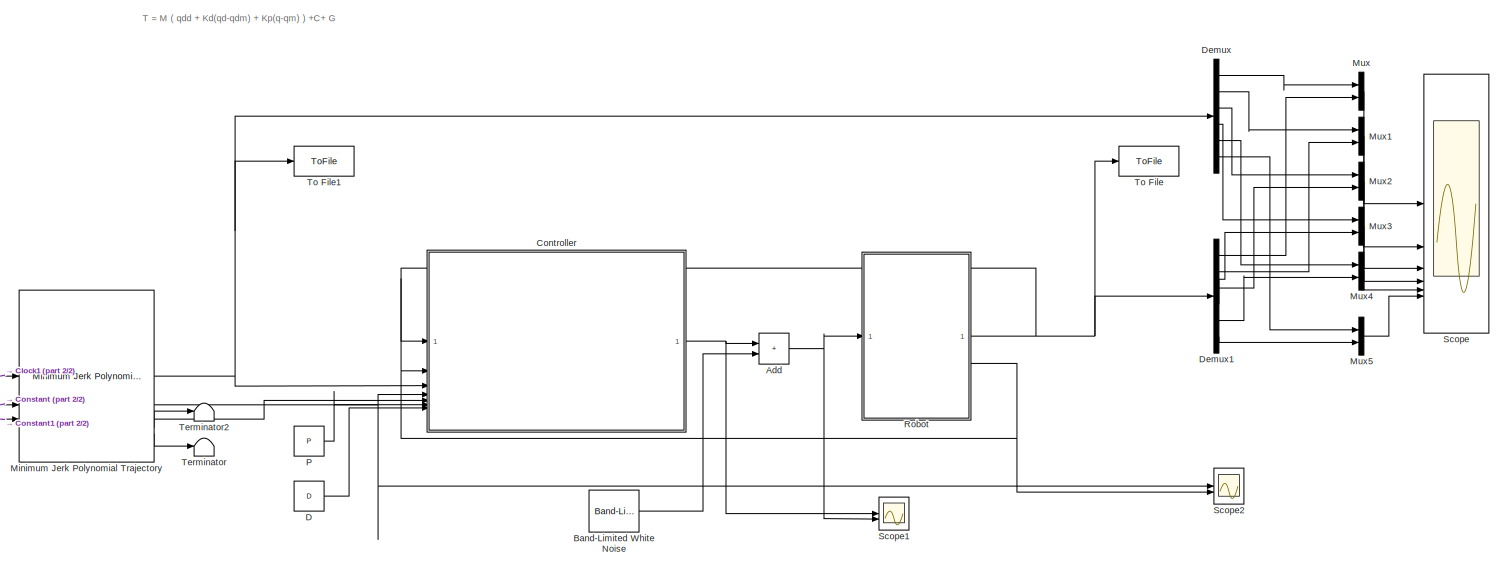
[diagram: root canvas - part 1/2, most of the canvas]
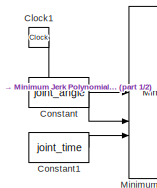
[diagram: root canvas - part 2/2, bottom left region]
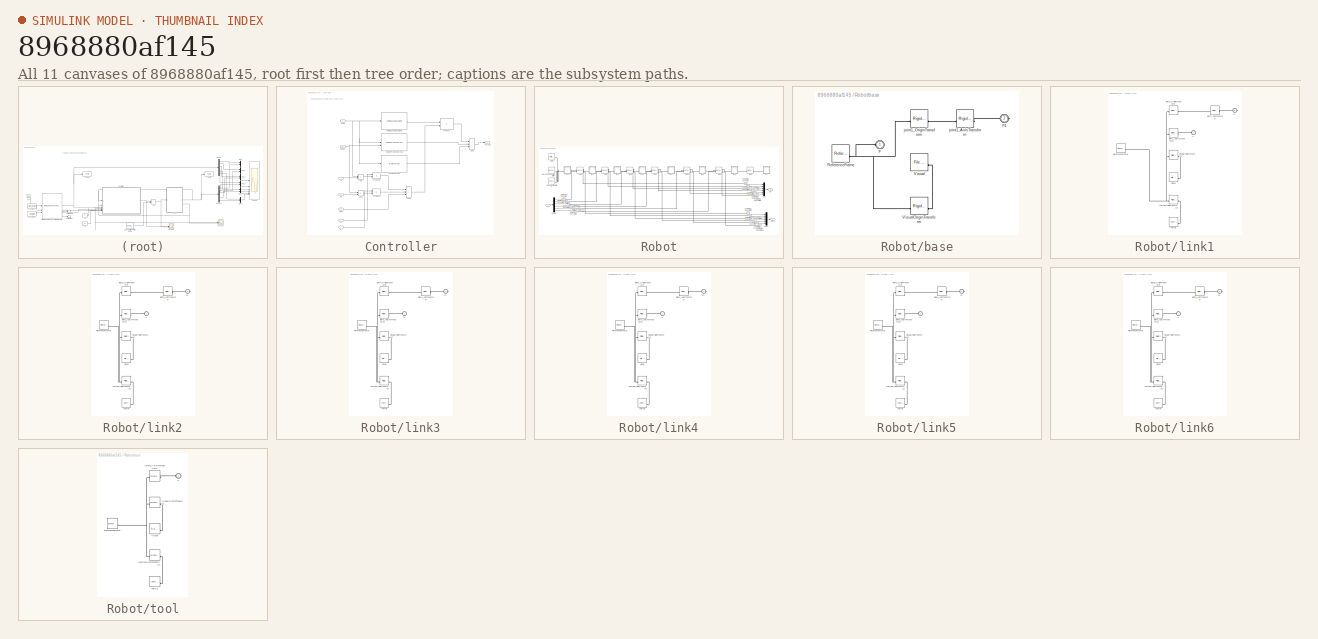
[diagram: thumbnail index - all 11 canvases of the model, root first then tree order]
MODEL slx_8968880af145
KIND model
CONFIG AbsTol = auto
CONFIG EnableMultiTasking = off
CONFIG FixedStep = auto
CONFIG MaxStep = auto
CONFIG MinStep = auto
CONFIG RelTol = 1e-3
CONFIG SampleTimeConstraint = Unconstrained
CONFIG SolverName = VariableStepAuto
CONFIG StartTime = 0.0
CONFIG StopTime = 10
BLOCK [Sum] Add
  IconShape = rectangular
BLOCK [Reference] Band-Limited White Noise  REF=simulink/Sources/Band-Limited
White Noise
  SourceBlock = simulink/Sources/Band-Limited\nWhite Noise
  SourceType = Band-Limited White Noise.
BLOCK [Clock] Clock1
  Decimation = 9
BLOCK [Constant] Constant
  Value = joint_angle
BLOCK [Constant] Constant1
  Value = joint_time
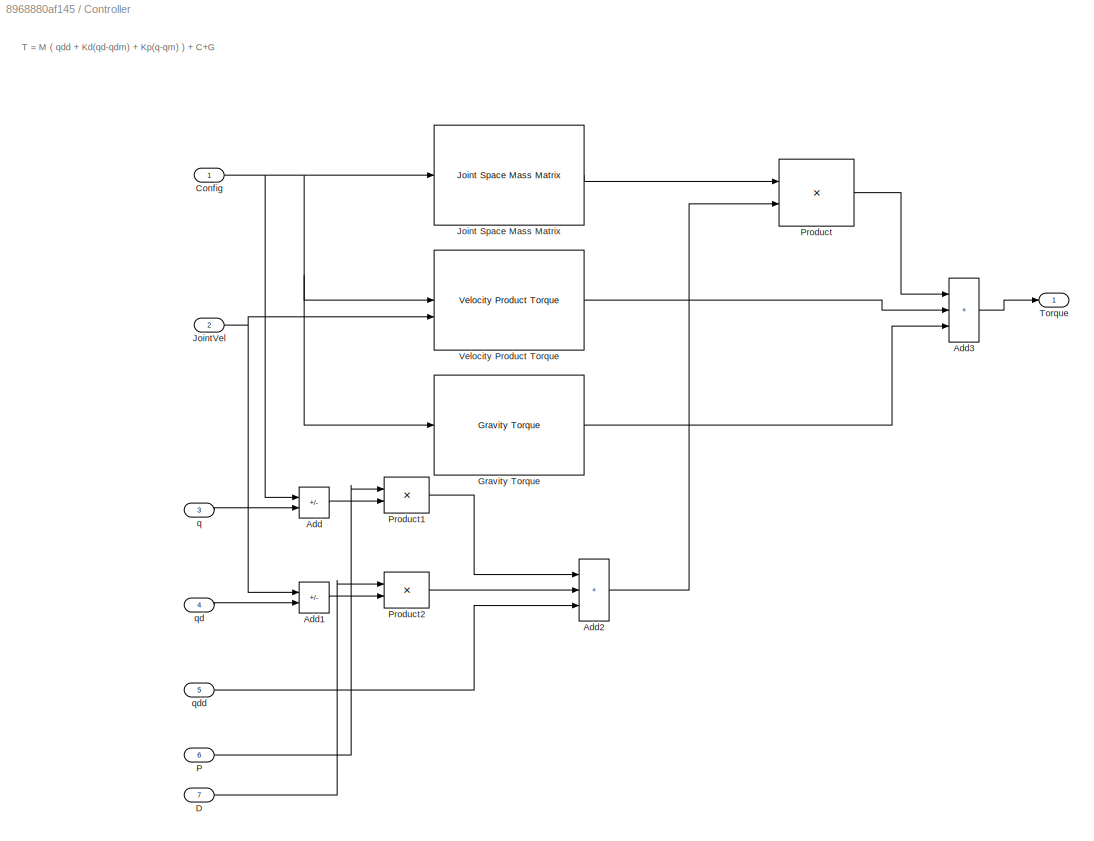
BLOCK [SubSystem] Controller
BLOCK [Sum] Controller/Add
  IconShape = rectangular
  Inputs = -+
BLOCK [Sum] Controller/Add1
  IconShape = rectangular
  Inputs = -+
BLOCK [Sum] Controller/Add2
  IconShape = rectangular
  Inputs = +++
BLOCK [Sum] Controller/Add3
  IconShape = rectangular
  Inputs = +++
BLOCK [Inport] Controller/Config
BLOCK [Inport] Controller/D
  Port = 7
BLOCK [Reference] Controller/Gravity Torque  REF=robotmaniplib/Gravity Torque
  SourceBlock = robotmaniplib/Gravity Torque
  SourceType = Gravity Torque
BLOCK [Reference] Controller/Joint Space Mass Matrix  REF=robotmaniplib/Joint Space Mass Matrix
  SourceBlock = robotmaniplib/Joint Space Mass Matrix
  SourceType = Joint Space Mass Matrix
BLOCK [Inport] Controller/JointVel
  Port = 2
BLOCK [Inport] Controller/P
  Port = 6
BLOCK [Product] Controller/Product
  Multiplication = Matrix(*)
BLOCK [Product] Controller/Product1
BLOCK [Product] Controller/Product2
BLOCK [Outport] Controller/Torque
BLOCK [Reference] Controller/Velocity Product Torque  REF=robotmaniplib/Velocity Product Torque
  SourceBlock = robotmaniplib/Velocity Product Torque
  SourceType = Velocity Product Torque
BLOCK [Inport] Controller/q
  Port = 3
BLOCK [Inport] Controller/qd
  Port = 4
BLOCK [Inport] Controller/qdd
  Port = 5
BLOCK [Constant] D
  Value = D
BLOCK [Demux] Demux
  Outputs = 6
BLOCK [Demux] Demux1
  Outputs = 6
BLOCK [Reference] Minimum Jerk Polynomial Trajectory  REF=shareduavrstlib/Minimum Jerk Polynomial Trajectory
  LibrarySourceBlock = robotutilslib/Minimum Jerk Polynomial Trajectory
  SourceBlock = shareduavrstlib/Minimum Jerk Polynomial Trajectory
  SourceType = shared_uav_rst.sluav.internal.system.MinJerkPolyTraj
BLOCK [Mux] Mux
  DisplayOption = bar
  Inputs = 2
BLOCK [Mux] Mux1
  DisplayOption = bar
  Inputs = 2
BLOCK [Mux] Mux2
  DisplayOption = bar
  Inputs = 2
BLOCK [Mux] Mux3
  DisplayOption = bar
  Inputs = 2
BLOCK [Mux] Mux4
  DisplayOption = bar
  Inputs = 2
BLOCK [Mux] Mux5
  DisplayOption = bar
  Inputs = 2
BLOCK [Constant] P
  Value = P
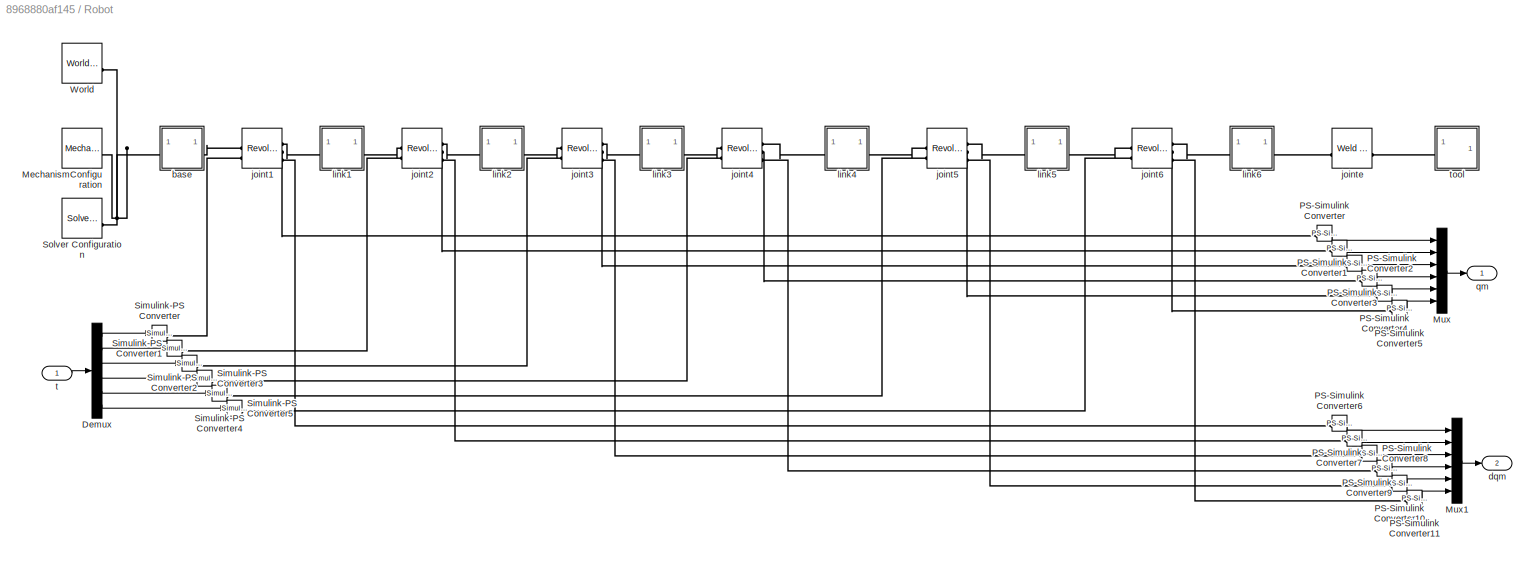
BLOCK [SubSystem] Robot
BLOCK [Demux] Robot/Demux
  Outputs = 6
BLOCK [Reference] Robot/MechanismConfiguration  REF=sm_lib/Utilities/Mechanism
Configuration
  SourceBlock = sm_lib/Utilities/Mechanism\nConfiguration
  SourceType = Mechanism\nConfiguration
BLOCK [Mux] Robot/Mux
  DisplayOption = bar
  Inputs = 6
BLOCK [Mux] Robot/Mux1
  DisplayOption = bar
  Inputs = 6
BLOCK [Reference] Robot/PS-Simulink Converter  REF=nesl_utility/PS-Simulink
Converter
  SourceBlock = nesl_utility/PS-Simulink\nConverter
  SourceType = PS-Simulink\nConverter
BLOCK [Reference] Robot/PS-Simulink Converter1  REF=nesl_utility/PS-Simulink
Converter
  SourceBlock = nesl_utility/PS-Simulink\nConverter
  SourceType = PS-Simulink\nConverter
BLOCK [Reference] Robot/PS-Simulink Converter10  REF=nesl_utility/PS-Simulink
Converter
  SourceBlock = nesl_utility/PS-Simulink\nConverter
  SourceType = PS-Simulink\nConverter
BLOCK [Reference] Robot/PS-Simulink Converter11  REF=nesl_utility/PS-Simulink
Converter
  SourceBlock = nesl_utility/PS-Simulink\nConverter
  SourceType = PS-Simulink\nConverter
BLOCK [Reference] Robot/PS-Simulink Converter2  REF=nesl_utility/PS-Simulink
Converter
  SourceBlock = nesl_utility/PS-Simulink\nConverter
  SourceType = PS-Simulink\nConverter
BLOCK [Reference] Robot/PS-Simulink Converter3  REF=nesl_utility/PS-Simulink
Converter
  SourceBlock = nesl_utility/PS-Simulink\nConverter
  SourceType = PS-Simulink\nConverter
BLOCK [Reference] Robot/PS-Simulink Converter4  REF=nesl_utility/PS-Simulink
Converter
  SourceBlock = nesl_utility/PS-Simulink\nConverter
  SourceType = PS-Simulink\nConverter
BLOCK [Reference] Robot/PS-Simulink Converter5  REF=nesl_utility/PS-Simulink
Converter
  SourceBlock = nesl_utility/PS-Simulink\nConverter
  SourceType = PS-Simulink\nConverter
BLOCK [Reference] Robot/PS-Simulink Converter6  REF=nesl_utility/PS-Simulink
Converter
  SourceBlock = nesl_utility/PS-Simulink\nConverter
  SourceType = PS-Simulink\nConverter
BLOCK [Reference] Robot/PS-Simulink Converter7  REF=nesl_utility/PS-Simulink
Converter
  SourceBlock = nesl_utility/PS-Simulink\nConverter
  SourceType = PS-Simulink\nConverter
BLOCK [Reference] Robot/PS-Simulink Converter8  REF=nesl_utility/PS-Simulink
Converter
  SourceBlock = nesl_utility/PS-Simulink\nConverter
  SourceType = PS-Simulink\nConverter
BLOCK [Reference] Robot/PS-Simulink Converter9  REF=nesl_utility/PS-Simulink
Converter
  SourceBlock = nesl_utility/PS-Simulink\nConverter
  SourceType = PS-Simulink\nConverter
BLOCK [Reference] Robot/Simulink-PS Converter  REF=nesl_utility/Simulink-PS
Converter
  SourceBlock = nesl_utility/Simulink-PS\nConverter
  SourceType = Simulink-PS\nConverter
BLOCK [Reference] Robot/Simulink-PS Converter1  REF=nesl_utility/Simulink-PS
Converter
  SourceBlock = nesl_utility/Simulink-PS\nConverter
  SourceType = Simulink-PS\nConverter
BLOCK [Reference] Robot/Simulink-PS Converter2  REF=nesl_utility/Simulink-PS
Converter
  SourceBlock = nesl_utility/Simulink-PS\nConverter
  SourceType = Simulink-PS\nConverter
BLOCK [Reference] Robot/Simulink-PS Converter3  REF=nesl_utility/Simulink-PS
Converter
  SourceBlock = nesl_utility/Simulink-PS\nConverter
  SourceType = Simulink-PS\nConverter
BLOCK [Reference] Robot/Simulink-PS Converter4  REF=nesl_utility/Simulink-PS
Converter
  SourceBlock = nesl_utility/Simulink-PS\nConverter
  SourceType = Simulink-PS\nConverter
BLOCK [Reference] Robot/Simulink-PS Converter5  REF=nesl_utility/Simulink-PS
Converter
  SourceBlock = nesl_utility/Simulink-PS\nConverter
  SourceType = Simulink-PS\nConverter
BLOCK [Reference] Robot/Solver Configuration  REF=nesl_utility/Solver
Configuration
  SourceBlock = nesl_utility/Solver\nConfiguration
  SourceType = Solver\nConfiguration
BLOCK [Reference] Robot/World  REF=sm_lib/Frames and
Transforms/World Frame
  SourceBlock = sm_lib/Frames and\nTransforms/World Frame
  SourceType = World Frame
BLOCK [SubSystem] Robot/base
BLOCK [PMIOPort] Robot/base/F
  Side = Left
BLOCK [PMIOPort] Robot/base/F1
  Port = 2
  Side = Right
BLOCK [Reference] Robot/base/ReferenceFrame  REF=sm_lib/Frames and
Transforms/Reference
Frame
  SourceBlock = sm_lib/Frames and\nTransforms/Reference\nFrame
  SourceType = Reference\nFrame
BLOCK [Reference] Robot/base/Visual  REF=sm_lib/Body Elements/File Solid
  SourceBlock = sm_lib/Body Elements/File Solid
  SourceType = File Solid
BLOCK [Reference] Robot/base/VisualOriginTransform  REF=sm_lib/Frames and
Transforms/Rigid
Transform
  SourceBlock = sm_lib/Frames and\nTransforms/Rigid\nTransform
  SourceType = Rigid\nTransform
BLOCK [Reference] Robot/base/joint1_AxisTransform  REF=sm_lib/Frames and
Transforms/Rigid
Transform
  SourceBlock = sm_lib/Frames and\nTransforms/Rigid\nTransform
  SourceType = Rigid\nTransform
BLOCK [Reference] Robot/base/joint1_OriginTransform  REF=sm_lib/Frames and
Transforms/Rigid
Transform
  SourceBlock = sm_lib/Frames and\nTransforms/Rigid\nTransform
  SourceType = Rigid\nTransform
BLOCK [Outport] Robot/dqm
  Port = 2
BLOCK [Reference] Robot/joint1  REF=sm_lib/Joints/Revolute Joint
  SourceBlock = sm_lib/Joints/Revolute Joint
  SourceType = Revolute Joint
BLOCK [Reference] Robot/joint2  REF=sm_lib/Joints/Revolute Joint
  SourceBlock = sm_lib/Joints/Revolute Joint
  SourceType = Revolute Joint
BLOCK [Reference] Robot/joint3  REF=sm_lib/Joints/Revolute Joint
  SourceBlock = sm_lib/Joints/Revolute Joint
  SourceType = Revolute Joint
BLOCK [Reference] Robot/joint4  REF=sm_lib/Joints/Revolute Joint
  SourceBlock = sm_lib/Joints/Revolute Joint
  SourceType = Revolute Joint
BLOCK [Reference] Robot/joint5  REF=sm_lib/Joints/Revolute Joint
  SourceBlock = sm_lib/Joints/Revolute Joint
  SourceType = Revolute Joint
BLOCK [Reference] Robot/joint6  REF=sm_lib/Joints/Revolute Joint
  SourceBlock = sm_lib/Joints/Revolute Joint
  SourceType = Revolute Joint
BLOCK [Reference] Robot/jointe  REF=sm_lib/Joints/Weld Joint
  SourceBlock = sm_lib/Joints/Weld Joint
  SourceType = Weld Joint
BLOCK [SubSystem] Robot/link1
BLOCK [PMIOPort] Robot/link1/F
  Side = Left
BLOCK [PMIOPort] Robot/link1/F1
  Port = 2
  Side = Right
BLOCK [Reference] Robot/link1/Inertia  REF=sm_lib/Body Elements/Inertia
  SourceBlock = sm_lib/Body Elements/Inertia
  SourceType = Inertia
BLOCK [Reference] Robot/link1/InertiaOriginTransform  REF=sm_lib/Frames and
Transforms/Rigid
Transform
  SourceBlock = sm_lib/Frames and\nTransforms/Rigid\nTransform
  SourceType = Rigid\nTransform
BLOCK [Reference] Robot/link1/ReferenceFrame  REF=sm_lib/Frames and
Transforms/Reference
Frame
  SourceBlock = sm_lib/Frames and\nTransforms/Reference\nFrame
  SourceType = Reference\nFrame
BLOCK [Reference] Robot/link1/Visual  REF=sm_lib/Body Elements/File Solid
  SourceBlock = sm_lib/Body Elements/File Solid
  SourceType = File Solid
BLOCK [Reference] Robot/link1/VisualOriginTransform  REF=sm_lib/Frames and
Transforms/Rigid
Transform
  SourceBlock = sm_lib/Frames and\nTransforms/Rigid\nTransform
  SourceType = Rigid\nTransform
BLOCK [Reference] Robot/link1/joint1_AxisInvTransform  REF=sm_lib/Frames and
Transforms/Rigid
Transform
  SourceBlock = sm_lib/Frames and\nTransforms/Rigid\nTransform
  SourceType = Rigid\nTransform
BLOCK [Reference] Robot/link1/joint2_AxisTransform  REF=sm_lib/Frames and
Transforms/Rigid
Transform
  SourceBlock = sm_lib/Frames and\nTransforms/Rigid\nTransform
  SourceType = Rigid\nTransform
BLOCK [Reference] Robot/link1/joint2_OriginTransform  REF=sm_lib/Frames and
Transforms/Rigid
Transform
  SourceBlock = sm_lib/Frames and\nTransforms/Rigid\nTransform
  SourceType = Rigid\nTransform
BLOCK [SubSystem] Robot/link2
BLOCK [PMIOPort] Robot/link2/F
  Side = Left
BLOCK [PMIOPort] Robot/link2/F1
  Port = 2
  Side = Right
BLOCK [Reference] Robot/link2/Inertia  REF=sm_lib/Body Elements/Inertia
  SourceBlock = sm_lib/Body Elements/Inertia
  SourceType = Inertia
BLOCK [Reference] Robot/link2/InertiaOriginTransform  REF=sm_lib/Frames and
Transforms/Rigid
Transform
  SourceBlock = sm_lib/Frames and\nTransforms/Rigid\nTransform
  SourceType = Rigid\nTransform
BLOCK [Reference] Robot/link2/ReferenceFrame  REF=sm_lib/Frames and
Transforms/Reference
Frame
  SourceBlock = sm_lib/Frames and\nTransforms/Reference\nFrame
  SourceType = Reference\nFrame
BLOCK [Reference] Robot/link2/Visual  REF=sm_lib/Body Elements/File Solid
  SourceBlock = sm_lib/Body Elements/File Solid
  SourceType = File Solid
BLOCK [Reference] Robot/link2/VisualOriginTransform  REF=sm_lib/Frames and
Transforms/Rigid
Transform
  SourceBlock = sm_lib/Frames and\nTransforms/Rigid\nTransform
  SourceType = Rigid\nTransform
BLOCK [Reference] Robot/link2/joint2_AxisInvTransform  REF=sm_lib/Frames and
Transforms/Rigid
Transform
  SourceBlock = sm_lib/Frames and\nTransforms/Rigid\nTransform
  SourceType = Rigid\nTransform
BLOCK [Reference] Robot/link2/joint3_AxisTransform  REF=sm_lib/Frames and
Transforms/Rigid
Transform
  SourceBlock = sm_lib/Frames and\nTransforms/Rigid\nTransform
  SourceType = Rigid\nTransform
BLOCK [Reference] Robot/link2/joint3_OriginTransform  REF=sm_lib/Frames and
Transforms/Rigid
Transform
  SourceBlock = sm_lib/Frames and\nTransforms/Rigid\nTransform
  SourceType = Rigid\nTransform
BLOCK [SubSystem] Robot/link3
BLOCK [PMIOPort] Robot/link3/F
  Side = Left
BLOCK [PMIOPort] Robot/link3/F1
  Port = 2
  Side = Right
BLOCK [Reference] Robot/link3/Inertia  REF=sm_lib/Body Elements/Inertia
  SourceBlock = sm_lib/Body Elements/Inertia
  SourceType = Inertia
BLOCK [Reference] Robot/link3/InertiaOriginTransform  REF=sm_lib/Frames and
Transforms/Rigid
Transform
  SourceBlock = sm_lib/Frames and\nTransforms/Rigid\nTransform
  SourceType = Rigid\nTransform
BLOCK [Reference] Robot/link3/ReferenceFrame  REF=sm_lib/Frames and
Transforms/Reference
Frame
  SourceBlock = sm_lib/Frames and\nTransforms/Reference\nFrame
  SourceType = Reference\nFrame
BLOCK [Reference] Robot/link3/Visual  REF=sm_lib/Body Elements/File Solid
  SourceBlock = sm_lib/Body Elements/File Solid
  SourceType = File Solid
BLOCK [Reference] Robot/link3/VisualOriginTransform  REF=sm_lib/Frames and
Transforms/Rigid
Transform
  SourceBlock = sm_lib/Frames and\nTransforms/Rigid\nTransform
  SourceType = Rigid\nTransform
BLOCK [Reference] Robot/link3/joint3_AxisInvTransform  REF=sm_lib/Frames and
Transforms/Rigid
Transform
  SourceBlock = sm_lib/Frames and\nTransforms/Rigid\nTransform
  SourceType = Rigid\nTransform
BLOCK [Reference] Robot/link3/joint4_AxisTransform  REF=sm_lib/Frames and
Transforms/Rigid
Transform
  SourceBlock = sm_lib/Frames and\nTransforms/Rigid\nTransform
  SourceType = Rigid\nTransform
BLOCK [Reference] Robot/link3/joint4_OriginTransform  REF=sm_lib/Frames and
Transforms/Rigid
Transform
  SourceBlock = sm_lib/Frames and\nTransforms/Rigid\nTransform
  SourceType = Rigid\nTransform
BLOCK [SubSystem] Robot/link4
BLOCK [PMIOPort] Robot/link4/F
  Side = Left
BLOCK [PMIOPort] Robot/link4/F1
  Port = 2
  Side = Right
BLOCK [Reference] Robot/link4/Inertia  REF=sm_lib/Body Elements/Inertia
  SourceBlock = sm_lib/Body Elements/Inertia
  SourceType = Inertia
BLOCK [Reference] Robot/link4/InertiaOriginTransform  REF=sm_lib/Frames and
Transforms/Rigid
Transform
  SourceBlock = sm_lib/Frames and\nTransforms/Rigid\nTransform
  SourceType = Rigid\nTransform
BLOCK [Reference] Robot/link4/ReferenceFrame  REF=sm_lib/Frames and
Transforms/Reference
Frame
  SourceBlock = sm_lib/Frames and\nTransforms/Reference\nFrame
  SourceType = Reference\nFrame
BLOCK [Reference] Robot/link4/Visual  REF=sm_lib/Body Elements/File Solid
  SourceBlock = sm_lib/Body Elements/File Solid
  SourceType = File Solid
BLOCK [Reference] Robot/link4/VisualOriginTransform  REF=sm_lib/Frames and
Transforms/Rigid
Transform
  SourceBlock = sm_lib/Frames and\nTransforms/Rigid\nTransform
  SourceType = Rigid\nTransform
BLOCK [Reference] Robot/link4/joint4_AxisInvTransform  REF=sm_lib/Frames and
Transforms/Rigid
Transform
  SourceBlock = sm_lib/Frames and\nTransforms/Rigid\nTransform
  SourceType = Rigid\nTransform
BLOCK [Reference] Robot/link4/joint5_AxisTransform  REF=sm_lib/Frames and
Transforms/Rigid
Transform
  SourceBlock = sm_lib/Frames and\nTransforms/Rigid\nTransform
  SourceType = Rigid\nTransform
BLOCK [Reference] Robot/link4/joint5_OriginTransform  REF=sm_lib/Frames and
Transforms/Rigid
Transform
  SourceBlock = sm_lib/Frames and\nTransforms/Rigid\nTransform
  SourceType = Rigid\nTransform
BLOCK [SubSystem] Robot/link5
BLOCK [PMIOPort] Robot/link5/F
  Side = Left
BLOCK [PMIOPort] Robot/link5/F1
  Port = 2
  Side = Right
BLOCK [Reference] Robot/link5/Inertia  REF=sm_lib/Body Elements/Inertia
  SourceBlock = sm_lib/Body Elements/Inertia
  SourceType = Inertia
BLOCK [Reference] Robot/link5/InertiaOriginTransform  REF=sm_lib/Frames and
Transforms/Rigid
Transform
  SourceBlock = sm_lib/Frames and\nTransforms/Rigid\nTransform
  SourceType = Rigid\nTransform
BLOCK [Reference] Robot/link5/ReferenceFrame  REF=sm_lib/Frames and
Transforms/Reference
Frame
  SourceBlock = sm_lib/Frames and\nTransforms/Reference\nFrame
  SourceType = Reference\nFrame
BLOCK [Reference] Robot/link5/Visual  REF=sm_lib/Body Elements/File Solid
  SourceBlock = sm_lib/Body Elements/File Solid
  SourceType = File Solid
BLOCK [Reference] Robot/link5/VisualOriginTransform  REF=sm_lib/Frames and
Transforms/Rigid
Transform
  SourceBlock = sm_lib/Frames and\nTransforms/Rigid\nTransform
  SourceType = Rigid\nTransform
BLOCK [Reference] Robot/link5/joint5_AxisInvTransform  REF=sm_lib/Frames and
Transforms/Rigid
Transform
  SourceBlock = sm_lib/Frames and\nTransforms/Rigid\nTransform
  SourceType = Rigid\nTransform
BLOCK [Reference] Robot/link5/joint6_AxisTransform  REF=sm_lib/Frames and
Transforms/Rigid
Transform
  SourceBlock = sm_lib/Frames and\nTransforms/Rigid\nTransform
  SourceType = Rigid\nTransform
BLOCK [Reference] Robot/link5/joint6_OriginTransform  REF=sm_lib/Frames and
Transforms/Rigid
Transform
  SourceBlock = sm_lib/Frames and\nTransforms/Rigid\nTransform
  SourceType = Rigid\nTransform
BLOCK [SubSystem] Robot/link6
BLOCK [PMIOPort] Robot/link6/F
  Side = Left
BLOCK [PMIOPort] Robot/link6/F1
  Port = 2
  Side = Right
BLOCK [Reference] Robot/link6/Inertia  REF=sm_lib/Body Elements/Inertia
  SourceBlock = sm_lib/Body Elements/Inertia
  SourceType = Inertia
BLOCK [Reference] Robot/link6/InertiaOriginTransform  REF=sm_lib/Frames and
Transforms/Rigid
Transform
  SourceBlock = sm_lib/Frames and\nTransforms/Rigid\nTransform
  SourceType = Rigid\nTransform
BLOCK [Reference] Robot/link6/ReferenceFrame  REF=sm_lib/Frames and
Transforms/Reference
Frame
  SourceBlock = sm_lib/Frames and\nTransforms/Reference\nFrame
  SourceType = Reference\nFrame
BLOCK [Reference] Robot/link6/Visual  REF=sm_lib/Body Elements/File Solid
  SourceBlock = sm_lib/Body Elements/File Solid
  SourceType = File Solid
BLOCK [Reference] Robot/link6/VisualOriginTransform  REF=sm_lib/Frames and
Transforms/Rigid
Transform
  SourceBlock = sm_lib/Frames and\nTransforms/Rigid\nTransform
  SourceType = Rigid\nTransform
BLOCK [Reference] Robot/link6/joint6_AxisInvTransform  REF=sm_lib/Frames and
Transforms/Rigid
Transform
  SourceBlock = sm_lib/Frames and\nTransforms/Rigid\nTransform
  SourceType = Rigid\nTransform
BLOCK [Reference] Robot/link6/jointe_AxisTransform  REF=sm_lib/Frames and
Transforms/Rigid
Transform
  SourceBlock = sm_lib/Frames and\nTransforms/Rigid\nTransform
  SourceType = Rigid\nTransform
BLOCK [Reference] Robot/link6/jointe_OriginTransform  REF=sm_lib/Frames and
Transforms/Rigid
Transform
  SourceBlock = sm_lib/Frames and\nTransforms/Rigid\nTransform
  SourceType = Rigid\nTransform
BLOCK [Outport] Robot/qm
BLOCK [Inport] Robot/t
BLOCK [SubSystem] Robot/tool
BLOCK [PMIOPort] Robot/tool/F
  Side = Left
BLOCK [Reference] Robot/tool/Inertia  REF=sm_lib/Body Elements/Inertia
  SourceBlock = sm_lib/Body Elements/Inertia
  SourceType = Inertia
BLOCK [Reference] Robot/tool/InertiaOriginTransform  REF=sm_lib/Frames and
Transforms/Rigid
Transform
  SourceBlock = sm_lib/Frames and\nTransforms/Rigid\nTransform
  SourceType = Rigid\nTransform
BLOCK [Reference] Robot/tool/ReferenceFrame  REF=sm_lib/Frames and
Transforms/Reference
Frame
  SourceBlock = sm_lib/Frames and\nTransforms/Reference\nFrame
  SourceType = Reference\nFrame
BLOCK [Reference] Robot/tool/Visual  REF=sm_lib/Body Elements/File Solid
  SourceBlock = sm_lib/Body Elements/File Solid
  SourceType = File Solid
BLOCK [Reference] Robot/tool/VisualOriginTransform  REF=sm_lib/Frames and
Transforms/Rigid
Transform
  SourceBlock = sm_lib/Frames and\nTransforms/Rigid\nTransform
  SourceType = Rigid\nTransform
BLOCK [Reference] Robot/tool/jointe_AxisInvTransform  REF=sm_lib/Frames and
Transforms/Rigid
Transform
  SourceBlock = sm_lib/Frames and\nTransforms/Rigid\nTransform
  SourceType = Rigid\nTransform
BLOCK [Scope] Scope
  Floating = off
  NumInputPorts = 6
  ScopeSpecificationString = Simulink.scopes.TimeScopeBlockCfg('CurrentConfiguration', extmgr.ConfigurationSet(extmgr.Configuration('Core','General UI',true),extmgr.Configuration('Core','Source UI',true),extmgr.Configuration('Sources','WiredSimulink',true),extmgr.Configuration('Visuals','Time Domain',true,'SerializedDisplays',{struct('MinYLimReal','-0.17917','MaxYLimReal','1.58565','YLabelReal','','MinYLimMag','0.00000','MaxY...<+4970ch>
BLOCK [Scope] Scope1
  Floating = off
  NumInputPorts = 2
  ScopeSpecificationString = Simulink.scopes.TimeScopeBlockCfg('CurrentConfiguration', extmgr.ConfigurationSet(extmgr.Configuration('Core','General UI',true),extmgr.Configuration('Core','Source UI',true),extmgr.Configuration('Sources','WiredSimulink',true,'DataLoggingVariableName','ScopeData1'),extmgr.Configuration('Visuals','Time Domain',true,'SerializedDisplays',{struct('MinYLimReal','-4.85341','MaxYLimReal','4.14987','YLab...<+2186ch>
BLOCK [Scope] Scope2
  Floating = off
  NumInputPorts = 2
  ScopeSpecificationString = Simulink.scopes.TimeScopeBlockCfg('CurrentConfiguration', extmgr.ConfigurationSet(extmgr.Configuration('Core','General UI',true),extmgr.Configuration('Core','Source UI',true),extmgr.Configuration('Sources','WiredSimulink',true,'DataLoggingVariableName','ScopeData2'),extmgr.Configuration('Visuals','Time Domain',true,'SerializedDisplays',{struct('MinYLimReal','-4.03834','MaxYLimReal','3.00799','YLab...<+2542ch>
BLOCK [Terminator] Terminator
BLOCK [Terminator] Terminator2
BLOCK [ToFile] To File
  Filename = output.mat
  MatrixName = output
BLOCK [ToFile] To File1
  Filename = input.mat
  MatrixName = input
ANNOTATION (root): T = M ( qdd + Kd(qd-qdm) + Kp(q-qm) ) +C+ G
ANNOTATION Controller: T = M ( qdd + Kd(qd-qdm) + Kp(q-qm) ) + C+G
NET Add:1 -> Robot:1, Scope1:2
LINE Band-Limited White Noise:1 -> Add:2
LINE Clock1:1 -> Minimum Jerk Polynomial Trajectory:1
LINE Constant1:1 -> Minimum Jerk Polynomial Trajectory:3
LINE Constant:1 -> Minimum Jerk Polynomial Trajectory:2
LINE Controller/Add1:1 -> Controller/Product2:2
LINE Controller/Add2:1 -> Controller/Product:2
LINE Controller/Add3:1 -> Controller/Torque:1
LINE Controller/Add:1 -> Controller/Product1:2
NET Controller/Config:1 -> Controller/Add:1, Controller/Gravity Torque:1, Controller/Joint Space Mass Matrix:1, Controller/Velocity Product Torque:1
LINE Controller/D:1 -> Controller/Product2:1
LINE Controller/Gravity Torque:1 -> Controller/Add3:3
LINE Controller/Joint Space Mass Matrix:1 -> Controller/Product:1
NET Controller/JointVel:1 -> Controller/Add1:1, Controller/Velocity Product Torque:2
LINE Controller/P:1 -> Controller/Product1:1
LINE Controller/Product1:1 -> Controller/Add2:1
LINE Controller/Product2:1 -> Controller/Add2:2
LINE Controller/Product:1 -> Controller/Add3:1
LINE Controller/Velocity Product Torque:1 -> Controller/Add3:2
LINE Controller/q:1 -> Controller/Add:2
LINE Controller/qd:1 -> Controller/Add1:2
LINE Controller/qdd:1 -> Controller/Add2:3
NET Controller:1 -> Add:1, Scope1:1
LINE D:1 -> Controller:7
LINE Demux1:1 -> Mux:2
LINE Demux1:2 -> Mux1:2
LINE Demux1:3 -> Mux2:2
LINE Demux1:4 -> Mux3:2
LINE Demux1:5 -> Mux4:2
LINE Demux1:6 -> Mux5:2
LINE Demux:1 -> Mux:1
LINE Demux:2 -> Mux1:1
LINE Demux:3 -> Mux2:1
LINE Demux:4 -> Mux3:1
LINE Demux:5 -> Mux4:1
LINE Demux:6 -> Mux5:1
NET Minimum Jerk Polynomial Trajectory:1 -> Controller:3, Demux:1, To File1:1
NET Minimum Jerk Polynomial Trajectory:2 -> Controller:4, Scope2:1
LINE Minimum Jerk Polynomial Trajectory:3 -> Controller:5
LINE Minimum Jerk Polynomial Trajectory:4 -> Terminator2:1
LINE Minimum Jerk Polynomial Trajectory:5 -> Terminator:1
LINE Mux1:1 -> Scope:2
LINE Mux2:1 -> Scope:3
LINE Mux3:1 -> Scope:4
LINE Mux4:1 -> Scope:5
LINE Mux5:1 -> Scope:6
LINE Mux:1 -> Scope:1
LINE P:1 -> Controller:6
LINE Robot/Demux:1 -> Robot/Simulink-PS Converter:1
LINE Robot/Demux:2 -> Robot/Simulink-PS Converter1:1
LINE Robot/Demux:3 -> Robot/Simulink-PS Converter2:1
LINE Robot/Demux:4 -> Robot/Simulink-PS Converter3:1
LINE Robot/Demux:5 -> Robot/Simulink-PS Converter4:1
LINE Robot/Demux:6 -> Robot/Simulink-PS Converter5:1
LINE Robot/Mux1:1 -> Robot/dqm:1
LINE Robot/Mux:1 -> Robot/qm:1
LINE Robot/PS-Simulink Converter10:1 -> Robot/Mux1:5
LINE Robot/PS-Simulink Converter11:1 -> Robot/Mux1:6
LINE Robot/PS-Simulink Converter1:1 -> Robot/Mux:2
LINE Robot/PS-Simulink Converter2:1 -> Robot/Mux:3
LINE Robot/PS-Simulink Converter3:1 -> Robot/Mux:4
LINE Robot/PS-Simulink Converter4:1 -> Robot/Mux:5
LINE Robot/PS-Simulink Converter5:1 -> Robot/Mux:6
LINE Robot/PS-Simulink Converter6:1 -> Robot/Mux1:1
LINE Robot/PS-Simulink Converter7:1 -> Robot/Mux1:2
LINE Robot/PS-Simulink Converter8:1 -> Robot/Mux1:3
LINE Robot/PS-Simulink Converter9:1 -> Robot/Mux1:4
LINE Robot/PS-Simulink Converter:1 -> Robot/Mux:1
LINE Robot/t:1 -> Robot/Demux:1
NET Robot:1 -> Controller:1, Demux1:1, To File:1
NET Robot:2 -> Controller:2, Scope2:2
PNET net1: Robot/MechanismConfiguration:RConn1 -- Robot/Solver Configuration:RConn1 -- Robot/World:RConn1 -- Robot/base:LConn1
PLINE Robot/PS-Simulink Converter10:LConn1 -- Robot/joint5:RConn3
PLINE Robot/PS-Simulink Converter11:LConn1 -- Robot/joint6:RConn3
PLINE Robot/PS-Simulink Converter1:LConn1 -- Robot/joint2:RConn2
PLINE Robot/PS-Simulink Converter2:LConn1 -- Robot/joint3:RConn2
PLINE Robot/PS-Simulink Converter3:LConn1 -- Robot/joint4:RConn2
PLINE Robot/PS-Simulink Converter4:LConn1 -- Robot/joint5:RConn2
PLINE Robot/PS-Simulink Converter5:LConn1 -- Robot/joint6:RConn2
PLINE Robot/PS-Simulink Converter6:LConn1 -- Robot/joint1:RConn3
PLINE Robot/PS-Simulink Converter7:LConn1 -- Robot/joint2:RConn3
PLINE Robot/PS-Simulink Converter8:LConn1 -- Robot/joint3:RConn3
PLINE Robot/PS-Simulink Converter9:LConn1 -- Robot/joint4:RConn3
PLINE Robot/PS-Simulink Converter:LConn1 -- Robot/joint1:RConn2
PLINE Robot/Simulink-PS Converter1:RConn1 -- Robot/joint2:LConn2
PLINE Robot/Simulink-PS Converter2:RConn1 -- Robot/joint3:LConn2
PLINE Robot/Simulink-PS Converter3:RConn1 -- Robot/joint4:LConn2
PLINE Robot/Simulink-PS Converter4:RConn1 -- Robot/joint5:LConn2
PLINE Robot/Simulink-PS Converter5:RConn1 -- Robot/joint6:LConn2
PLINE Robot/Simulink-PS Converter:RConn1 -- Robot/joint1:LConn2
PLINE Robot/base/F1:RConn1 -- Robot/base/joint1_AxisTransform:RConn1
PNET net2: Robot/base/F:RConn1 -- Robot/base/ReferenceFrame:RConn1 -- Robot/base/VisualOriginTransform:LConn1 -- Robot/base/joint1_OriginTransform:LConn1
PLINE Robot/base/Visual:RConn1 -- Robot/base/VisualOriginTransform:RConn1
PLINE Robot/base/joint1_AxisTransform:LConn1 -- Robot/base/joint1_OriginTransform:RConn1
PLINE Robot/base:RConn1 -- Robot/joint1:LConn1
PLINE Robot/joint1:RConn1 -- Robot/link1:LConn1
PLINE Robot/joint2:LConn1 -- Robot/link1:RConn1
PLINE Robot/joint2:RConn1 -- Robot/link2:LConn1
PLINE Robot/joint3:LConn1 -- Robot/link2:RConn1
PLINE Robot/joint3:RConn1 -- Robot/link3:LConn1
PLINE Robot/joint4:LConn1 -- Robot/link3:RConn1
PLINE Robot/joint4:RConn1 -- Robot/link4:LConn1
PLINE Robot/joint5:LConn1 -- Robot/link4:RConn1
PLINE Robot/joint5:RConn1 -- Robot/link5:LConn1
PLINE Robot/joint6:LConn1 -- Robot/link5:RConn1
PLINE Robot/joint6:RConn1 -- Robot/link6:LConn1
PLINE Robot/jointe:LConn1 -- Robot/link6:RConn1
PLINE Robot/jointe:RConn1 -- Robot/tool:LConn1
PLINE Robot/link1/F1:RConn1 -- Robot/link1/joint2_AxisTransform:RConn1
PLINE Robot/link1/F:RConn1 -- Robot/link1/joint1_AxisInvTransform:RConn1
PLINE Robot/link1/Inertia:RConn1 -- Robot/link1/InertiaOriginTransform:RConn1
PNET net3: Robot/link1/InertiaOriginTransform:LConn1 -- Robot/link1/ReferenceFrame:RConn1 -- Robot/link1/VisualOriginTransform:LConn1 -- Robot/link1/joint1_AxisInvTransform:LConn1 -- Robot/link1/joint2_OriginTransform:LConn1
PLINE Robot/link1/Visual:RConn1 -- Robot/link1/VisualOriginTransform:RConn1
PLINE Robot/link1/joint2_AxisTransform:LConn1 -- Robot/link1/joint2_OriginTransform:RConn1
PLINE Robot/link2/F1:RConn1 -- Robot/link2/joint3_AxisTransform:RConn1
PLINE Robot/link2/F:RConn1 -- Robot/link2/joint2_AxisInvTransform:RConn1
PLINE Robot/link2/Inertia:RConn1 -- Robot/link2/InertiaOriginTransform:RConn1
PNET net4: Robot/link2/InertiaOriginTransform:LConn1 -- Robot/link2/ReferenceFrame:RConn1 -- Robot/link2/VisualOriginTransform:LConn1 -- Robot/link2/joint2_AxisInvTransform:LConn1 -- Robot/link2/joint3_OriginTransform:LConn1
PLINE Robot/link2/Visual:RConn1 -- Robot/link2/VisualOriginTransform:RConn1
PLINE Robot/link2/joint3_AxisTransform:LConn1 -- Robot/link2/joint3_OriginTransform:RConn1
PLINE Robot/link3/F1:RConn1 -- Robot/link3/joint4_AxisTransform:RConn1
PLINE Robot/link3/F:RConn1 -- Robot/link3/joint3_AxisInvTransform:RConn1
PLINE Robot/link3/Inertia:RConn1 -- Robot/link3/InertiaOriginTransform:RConn1
PNET net5: Robot/link3/InertiaOriginTransform:LConn1 -- Robot/link3/ReferenceFrame:RConn1 -- Robot/link3/VisualOriginTransform:LConn1 -- Robot/link3/joint3_AxisInvTransform:LConn1 -- Robot/link3/joint4_OriginTransform:LConn1
PLINE Robot/link3/Visual:RConn1 -- Robot/link3/VisualOriginTransform:RConn1
PLINE Robot/link3/joint4_AxisTransform:LConn1 -- Robot/link3/joint4_OriginTransform:RConn1
PLINE Robot/link4/F1:RConn1 -- Robot/link4/joint5_AxisTransform:RConn1
PLINE Robot/link4/F:RConn1 -- Robot/link4/joint4_AxisInvTransform:RConn1
PLINE Robot/link4/Inertia:RConn1 -- Robot/link4/InertiaOriginTransform:RConn1
PNET net6: Robot/link4/InertiaOriginTransform:LConn1 -- Robot/link4/ReferenceFrame:RConn1 -- Robot/link4/VisualOriginTransform:LConn1 -- Robot/link4/joint4_AxisInvTransform:LConn1 -- Robot/link4/joint5_OriginTransform:LConn1
PLINE Robot/link4/Visual:RConn1 -- Robot/link4/VisualOriginTransform:RConn1
PLINE Robot/link4/joint5_AxisTransform:LConn1 -- Robot/link4/joint5_OriginTransform:RConn1
PLINE Robot/link5/F1:RConn1 -- Robot/link5/joint6_AxisTransform:RConn1
PLINE Robot/link5/F:RConn1 -- Robot/link5/joint5_AxisInvTransform:RConn1
PLINE Robot/link5/Inertia:RConn1 -- Robot/link5/InertiaOriginTransform:RConn1
PNET net7: Robot/link5/InertiaOriginTransform:LConn1 -- Robot/link5/ReferenceFrame:RConn1 -- Robot/link5/VisualOriginTransform:LConn1 -- Robot/link5/joint5_AxisInvTransform:LConn1 -- Robot/link5/joint6_OriginTransform:LConn1
PLINE Robot/link5/Visual:RConn1 -- Robot/link5/VisualOriginTransform:RConn1
PLINE Robot/link5/joint6_AxisTransform:LConn1 -- Robot/link5/joint6_OriginTransform:RConn1
PLINE Robot/link6/F1:RConn1 -- Robot/link6/jointe_AxisTransform:RConn1
PLINE Robot/link6/F:RConn1 -- Robot/link6/joint6_AxisInvTransform:RConn1
PLINE Robot/link6/Inertia:RConn1 -- Robot/link6/InertiaOriginTransform:RConn1
PNET net8: Robot/link6/InertiaOriginTransform:LConn1 -- Robot/link6/ReferenceFrame:RConn1 -- Robot/link6/VisualOriginTransform:LConn1 -- Robot/link6/joint6_AxisInvTransform:LConn1 -- Robot/link6/jointe_OriginTransform:LConn1
PLINE Robot/link6/Visual:RConn1 -- Robot/link6/VisualOriginTransform:RConn1
PLINE Robot/link6/jointe_AxisTransform:LConn1 -- Robot/link6/jointe_OriginTransform:RConn1
PLINE Robot/tool/F:RConn1 -- Robot/tool/jointe_AxisInvTransform:RConn1
PLINE Robot/tool/Inertia:RConn1 -- Robot/tool/InertiaOriginTransform:RConn1
PNET net9: Robot/tool/InertiaOriginTransform:LConn1 -- Robot/tool/ReferenceFrame:RConn1 -- Robot/tool/VisualOriginTransform:LConn1 -- Robot/tool/jointe_AxisInvTransform:LConn1
PLINE Robot/tool/Visual:RConn1 -- Robot/tool/VisualOriginTransform:RConn1
note: NET lines group one-source signal fan-out (src -> all destinations, sorted); 1:1 wires keep LINE; PNET lines group multi-terminal physical nets as a canonical sorted terminal list (undirected conserving connections); 2-terminal nets keep the pairwise PLINE form
